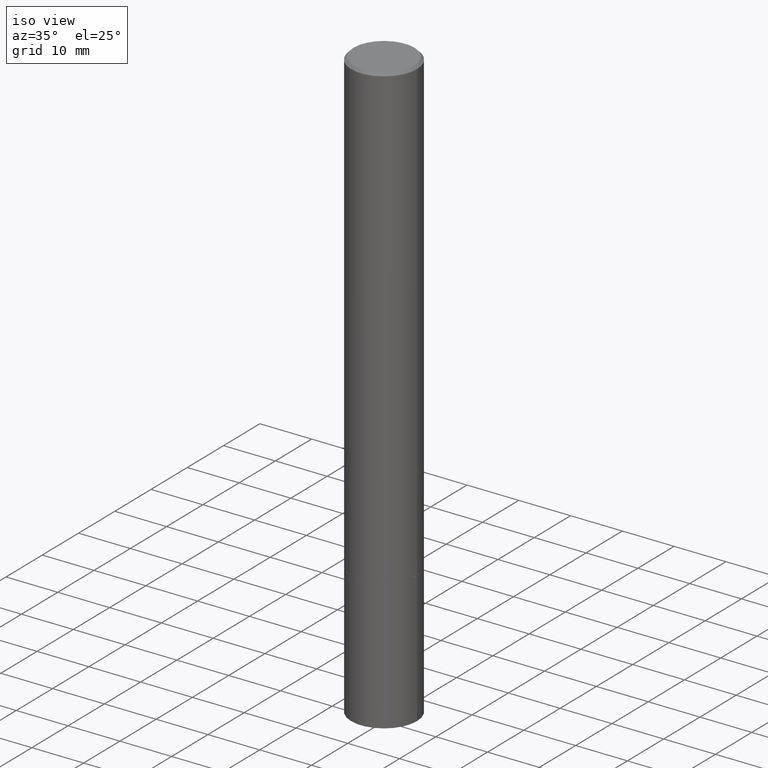
[diagram: clean part render]
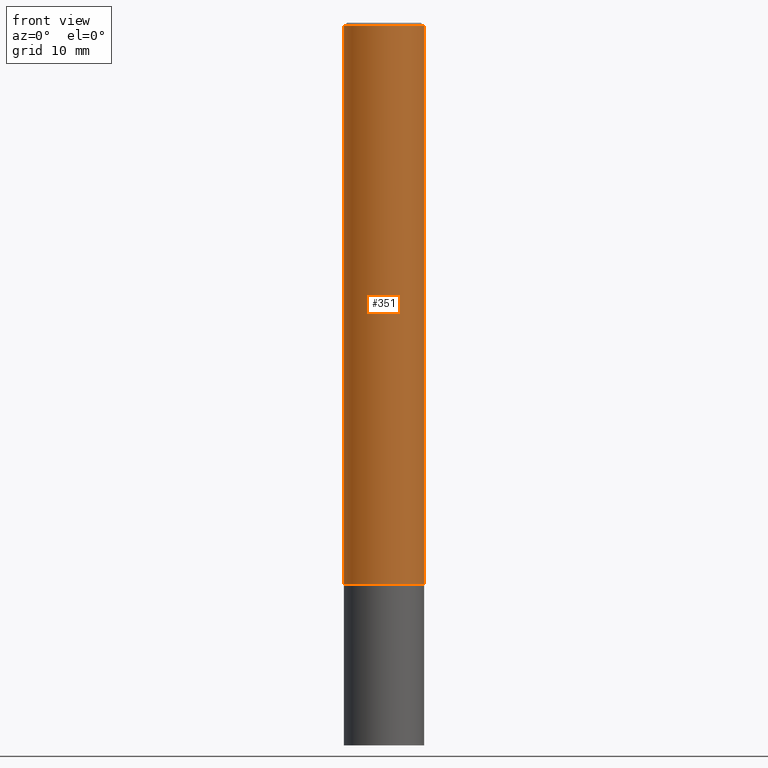
[diagram: tour spotlight — one face highlighted and labeled with its STEP entity id]
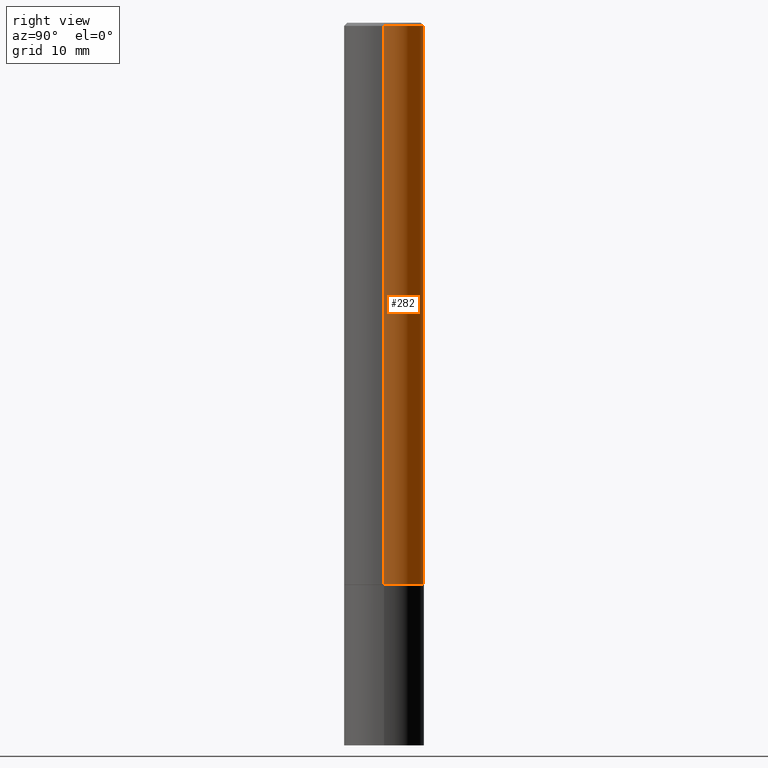
[diagram: tour spotlight — one face highlighted and labeled with its STEP entity id]
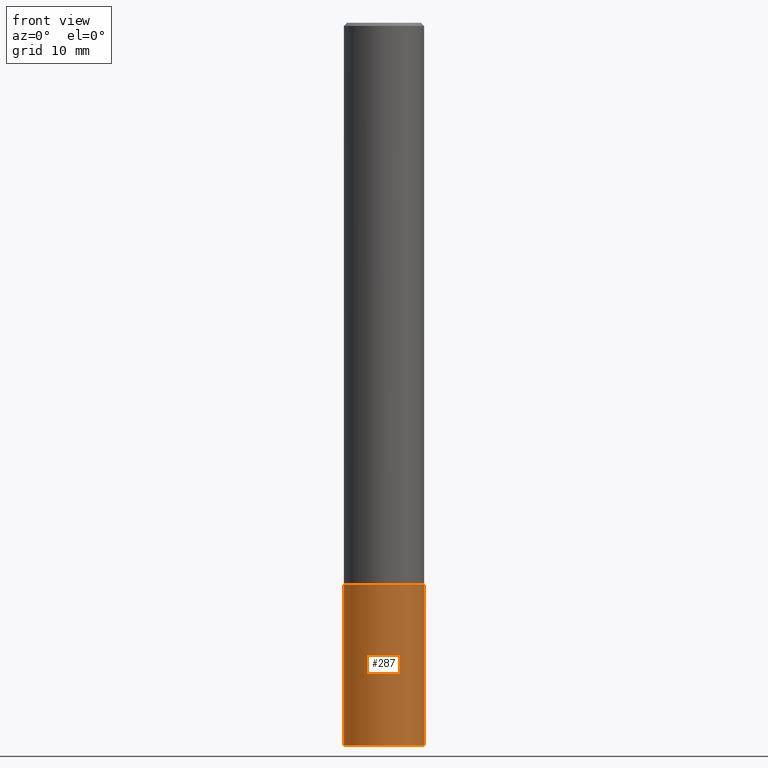
[diagram: tour spotlight — one face highlighted and labeled with its STEP entity id]
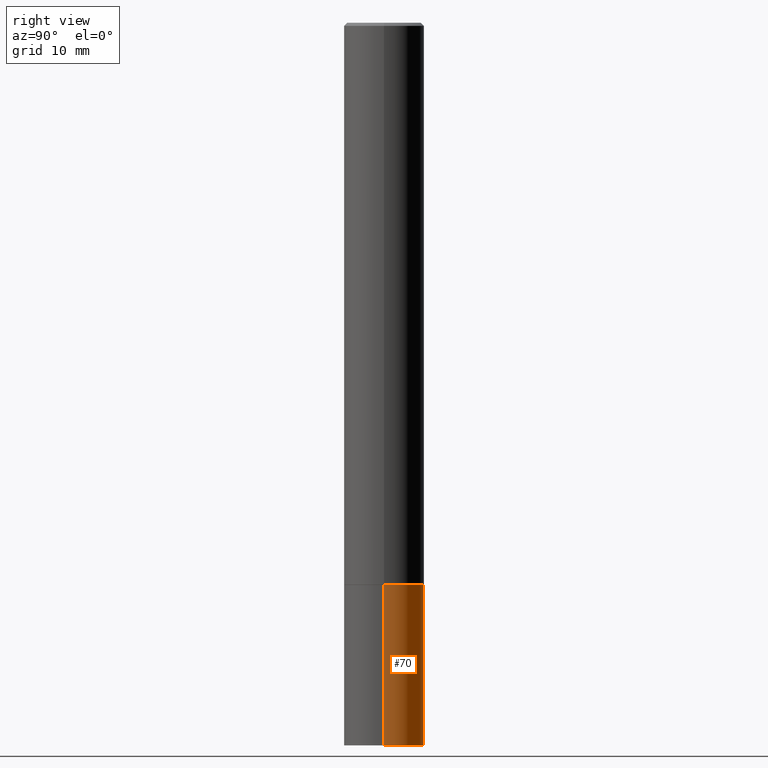
[diagram: tour spotlight — one face highlighted and labeled with its STEP entity id]
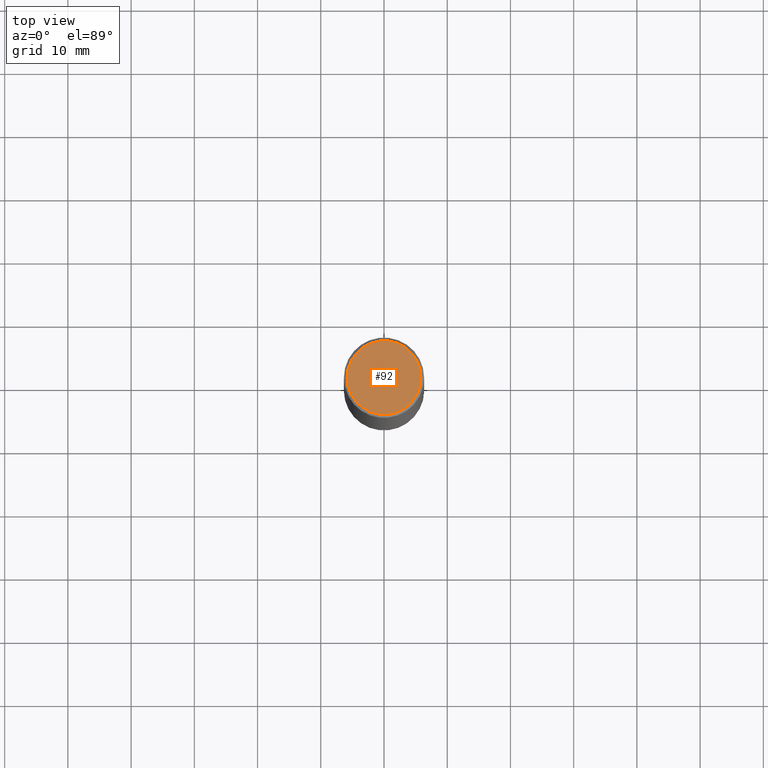
[diagram: tour spotlight — one face highlighted and labeled with its STEP entity id]
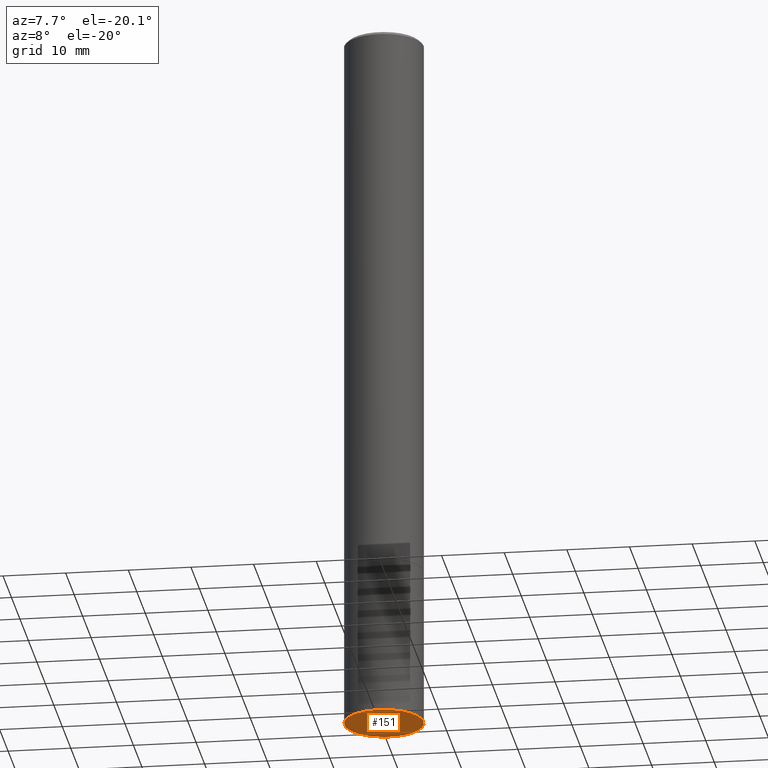
[diagram: tour spotlight — one face highlighted and labeled with its STEP entity id]
A machine part: a face-by-face anatomy tour. The part has 12 B-rep faces; the first image is the clean iso view, then the 6 largest visible faces are spotlighted one at a time (largest first), each with its STEP entity span.

Face 1 — front view, entity #351. In plain terms, the highlighted cylindrical surface (partial cylindrical patch) has radius 6.35 mm, axis along (-0, 0, 1).
Definition (entity closure, byte-faithful):
#4 = CARTESIAN_POINT ( 'NONE',  ( -0.2500000000000000555, -4.366904576294259619E-15, -3.499000000000000554 ) ) ;
#9 = DIRECTION ( 'NONE',  ( 1.000000000000000000, -6.982962677686270655E-15, 0.000000000000000000 ) ) ;
#28 = EDGE_CURVE ( 'NONE', #271, #192, #352, .T. ) ;
#46 = CIRCLE ( 'NONE', #354, 0.2499999999999995837 ) ;
#53 = ORIENTED_EDGE ( 'NONE', *, *, #158, .F. ) ;
#62 = CARTESIAN_POINT ( 'NONE',  ( 0.2499999999999998057, -1.745740669421565297E-15, 1.219044193948982967E-29 ) ) ;
#73 = DIRECTION ( 'NONE',  ( -2.445468806185136877E-29, 3.491481338843145188E-15, 1.000000000000000000 ) ) ;
#78 = DIRECTION ( 'NONE',  ( -2.445468806185136877E-29, 3.491481338843145188E-15, 1.000000000000000000 ) ) ;
#95 = CARTESIAN_POINT ( 'NONE',  ( 4.890937612370290675E-31, -6.982962677686316261E-17, -0.02000000000000007327 ) ) ;
#99 = LINE ( 'NONE', #62, #156 ) ;
#113 = CARTESIAN_POINT ( 'NONE',  ( -0.2499999999999998057, 1.776356839400249084E-15, -1.229733772563725465E-29 ) ) ;
#118 = AXIS2_PLACEMENT_3D ( 'NONE', #207, #147, #9 ) ;
#130 = AXIS2_PLACEMENT_3D ( 'NONE', #203, #316, #257 ) ;
#133 = EDGE_LOOP ( 'NONE', ( #53, #190, #242, #304 ) ) ;
#143 = VECTOR ( 'NONE', #78, 39.37007874015748143 ) ;
#145 = CYLINDRICAL_SURFACE ( 'NONE', #130, 0.2499999999999998057 ) ;
#147 = DIRECTION ( 'NONE',  ( -2.445468806185136597E-29, 3.491481338843145583E-15, 1.000000000000000000 ) ) ;
#152 = VERTEX_POINT ( 'NONE', #189 ) ;
#156 = VECTOR ( 'NONE', #73, 39.37007874015748143 ) ;
#158 = EDGE_CURVE ( 'NONE', #271, #165, #331, .T. ) ;
#165 = VERTEX_POINT ( 'NONE', #187 ) ;
#187 = CARTESIAN_POINT ( 'NONE',  ( -0.2499999999999995837, 1.675911042644700618E-15, -0.02000000000000007327 ) ) ;
#189 = CARTESIAN_POINT ( 'NONE',  ( 0.2499999999999995837, -1.784954126219743033E-15, -0.02000000000000007327 ) ) ;
#190 = ORIENTED_EDGE ( 'NONE', *, *, #28, .T. ) ;
#192 = VERTEX_POINT ( 'NONE', #301 ) ;
#194 = DIRECTION ( 'NONE',  ( -2.445468806185136597E-29, 3.491481338843145583E-15, 1.000000000000000000 ) ) ;
#197 = DIRECTION ( 'NONE',  ( 1.000000000000000000, -6.982962677686266711E-15, 0.000000000000000000 ) ) ;
#203 = CARTESIAN_POINT ( 'NONE',  ( 0.000000000000000000, 0.000000000000000000, 0.000000000000000000 ) ) ;
#207 = CARTESIAN_POINT ( 'NONE',  ( 8.556695352841794728E-29, -1.221669320461216791E-14, -3.499000000000000554 ) ) ;
#218 = FACE_OUTER_BOUND ( 'NONE', #133, .T. ) ;
#242 = ORIENTED_EDGE ( 'NONE', *, *, #256, .T. ) ;
#256 = EDGE_CURVE ( 'NONE', #192, #152, #99, .T. ) ;
#257 = DIRECTION ( 'NONE',  ( 1.000000000000000000, -6.982962677686266711E-15, 4.876176775795935793E-29 ) ) ;
#271 = VERTEX_POINT ( 'NONE', #4 ) ;
#301 = CARTESIAN_POINT ( 'NONE',  ( 0.2500000000000000000, -1.396243387403373617E-14, -3.499000000000000554 ) ) ;
#304 = ORIENTED_EDGE ( 'NONE', *, *, #317, .F. ) ;
#316 = DIRECTION ( 'NONE',  ( -2.445468806185136597E-29, 3.491481338843145583E-15, 1.000000000000000000 ) ) ;
#317 = EDGE_CURVE ( 'NONE', #165, #152, #46, .T. ) ;
#331 = LINE ( 'NONE', #113, #143 ) ;
#351 = ADVANCED_FACE ( 'NONE', ( #218 ), #145, .T. ) ;
#352 = CIRCLE ( 'NONE', #118, 0.2500000000000000000 ) ;
#354 = AXIS2_PLACEMENT_3D ( 'NONE', #95, #194, #197 ) ;

Face 2 — right view, entity #282. In plain terms, the highlighted cylindrical surface (partial cylindrical patch) has radius 6.35 mm, axis along (-0, 0, 1).
Definition (entity closure, byte-faithful):
#4 = CARTESIAN_POINT ( 'NONE',  ( -0.2500000000000000555, -4.366904576294259619E-15, -3.499000000000000554 ) ) ;
#5 = EDGE_LOOP ( 'NONE', ( #111, #302, #224, #300 ) ) ;
#7 = CYLINDRICAL_SURFACE ( 'NONE', #318, 0.2499999999999998057 ) ;
#8 = FACE_OUTER_BOUND ( 'NONE', #5, .T. ) ;
#27 = AXIS2_PLACEMENT_3D ( 'NONE', #108, #329, #110 ) ;
#55 = CARTESIAN_POINT ( 'NONE',  ( 8.556695352841794728E-29, -1.221669320461216791E-14, -3.499000000000000554 ) ) ;
#58 = DIRECTION ( 'NONE',  ( 1.000000000000000000, -6.982962677686270655E-15, 0.000000000000000000 ) ) ;
#62 = CARTESIAN_POINT ( 'NONE',  ( 0.2499999999999998057, -1.745740669421565297E-15, 1.219044193948982967E-29 ) ) ;
#73 = DIRECTION ( 'NONE',  ( -2.445468806185136877E-29, 3.491481338843145188E-15, 1.000000000000000000 ) ) ;
#78 = DIRECTION ( 'NONE',  ( -2.445468806185136877E-29, 3.491481338843145188E-15, 1.000000000000000000 ) ) ;
#99 = LINE ( 'NONE', #62, #156 ) ;
#108 = CARTESIAN_POINT ( 'NONE',  ( 4.890937612370290675E-31, -6.982962677686316261E-17, -0.02000000000000007327 ) ) ;
#110 = DIRECTION ( 'NONE',  ( 1.000000000000000000, -6.982962677686266711E-15, 0.000000000000000000 ) ) ;
#111 = ORIENTED_EDGE ( 'NONE', *, *, #344, .T. ) ;
#113 = CARTESIAN_POINT ( 'NONE',  ( -0.2499999999999998057, 1.776356839400249084E-15, -1.229733772563725465E-29 ) ) ;
#121 = DIRECTION ( 'NONE',  ( -2.445468806185136597E-29, 3.491481338843145583E-15, 1.000000000000000000 ) ) ;
#122 = CARTESIAN_POINT ( 'NONE',  ( 0.000000000000000000, 0.000000000000000000, 0.000000000000000000 ) ) ;
#143 = VECTOR ( 'NONE', #78, 39.37007874015748143 ) ;
#152 = VERTEX_POINT ( 'NONE', #189 ) ;
#156 = VECTOR ( 'NONE', #73, 39.37007874015748143 ) ;
#158 = EDGE_CURVE ( 'NONE', #271, #165, #331, .T. ) ;
#165 = VERTEX_POINT ( 'NONE', #187 ) ;
#187 = CARTESIAN_POINT ( 'NONE',  ( -0.2499999999999995837, 1.675911042644700618E-15, -0.02000000000000007327 ) ) ;
#189 = CARTESIAN_POINT ( 'NONE',  ( 0.2499999999999995837, -1.784954126219743033E-15, -0.02000000000000007327 ) ) ;
#192 = VERTEX_POINT ( 'NONE', #301 ) ;
#221 = AXIS2_PLACEMENT_3D ( 'NONE', #55, #228, #58 ) ;
#224 = ORIENTED_EDGE ( 'NONE', *, *, #226, .F. ) ;
#226 = EDGE_CURVE ( 'NONE', #152, #165, #308, .T. ) ;
#227 = DIRECTION ( 'NONE',  ( 1.000000000000000000, -6.982962677686266711E-15, 4.876176775795935793E-29 ) ) ;
#228 = DIRECTION ( 'NONE',  ( -2.445468806185136597E-29, 3.491481338843145583E-15, 1.000000000000000000 ) ) ;
#247 = CIRCLE ( 'NONE', #221, 0.2500000000000000000 ) ;
#256 = EDGE_CURVE ( 'NONE', #192, #152, #99, .T. ) ;
#271 = VERTEX_POINT ( 'NONE', #4 ) ;
#282 = ADVANCED_FACE ( 'NONE', ( #8 ), #7, .T. ) ;
#300 = ORIENTED_EDGE ( 'NONE', *, *, #256, .F. ) ;
#301 = CARTESIAN_POINT ( 'NONE',  ( 0.2500000000000000000, -1.396243387403373617E-14, -3.499000000000000554 ) ) ;
#302 = ORIENTED_EDGE ( 'NONE', *, *, #158, .T. ) ;
#308 = CIRCLE ( 'NONE', #27, 0.2499999999999995837 ) ;
#318 = AXIS2_PLACEMENT_3D ( 'NONE', #122, #121, #227 ) ;
#329 = DIRECTION ( 'NONE',  ( -2.445468806185136597E-29, 3.491481338843145583E-15, 1.000000000000000000 ) ) ;
#331 = LINE ( 'NONE', #113, #143 ) ;
#344 = EDGE_CURVE ( 'NONE', #192, #271, #247, .T. ) ;

Face 3 — front view, entity #287. In plain terms, the highlighted cylindrical surface (partial cylindrical patch) has radius 6.35 mm, axis along (-0, 0, 1).
Definition (entity closure, byte-faithful):
#1 = DIRECTION ( 'NONE',  ( 1.000000000000000000, -6.982962677686262766E-15, 0.000000000000000000 ) ) ;
#2 = VECTOR ( 'NONE', #349, 39.37007874015748143 ) ;
#13 = EDGE_CURVE ( 'NONE', #35, #161, #264, .T. ) ;
#35 = VERTEX_POINT ( 'NONE', #123 ) ;
#51 = CARTESIAN_POINT ( 'NONE',  ( 0.2500000000000000000, -1.745740669421566678E-15, 1.219044193948983948E-29 ) ) ;
#56 = EDGE_LOOP ( 'NONE', ( #159, #86, #251, #232 ) ) ;
#57 = VERTEX_POINT ( 'NONE', #347 ) ;
#65 = DIRECTION ( 'NONE',  ( -2.445468806185136597E-29, 3.491481338843145583E-15, 1.000000000000000000 ) ) ;
#71 = CARTESIAN_POINT ( 'NONE',  ( -0.2500000000000000000, 1.776356839400250465E-15, -1.229733772563726445E-29 ) ) ;
#86 = ORIENTED_EDGE ( 'NONE', *, *, #236, .T. ) ;
#93 = FACE_OUTER_BOUND ( 'NONE', #56, .T. ) ;
#112 = CARTESIAN_POINT ( 'NONE',  ( 1.100460962783311469E-28, -1.571166602479415690E-14, -4.500000000000000000 ) ) ;
#116 = VECTOR ( 'NONE', #213, 39.37007874015748143 ) ;
#123 = CARTESIAN_POINT ( 'NONE',  ( -0.2500000000000000000, -1.218956851597233187E-14, -4.500000000000000000 ) ) ;
#132 = CARTESIAN_POINT ( 'NONE',  ( 0.2500000000000000000, -1.745740669421572357E-14, -4.500000000000000000 ) ) ;
#142 = DIRECTION ( 'NONE',  ( -2.445468806185136597E-29, 3.491481338843145583E-15, 1.000000000000000000 ) ) ;
#146 = CIRCLE ( 'NONE', #325, 0.2500000000000000000 ) ;
#159 = ORIENTED_EDGE ( 'NONE', *, *, #13, .F. ) ;
#161 = VERTEX_POINT ( 'NONE', #162 ) ;
#162 = CARTESIAN_POINT ( 'NONE',  ( -0.2500000000000000000, -1.218956851597233187E-14, -3.500000000000000444 ) ) ;
#169 = VERTEX_POINT ( 'NONE', #132 ) ;
#172 = EDGE_CURVE ( 'NONE', #169, #57, #334, .T. ) ;
#174 = CARTESIAN_POINT ( 'NONE',  ( 8.559140821647978089E-29, -1.222018468595101092E-14, -3.500000000000000444 ) ) ;
#176 = CARTESIAN_POINT ( 'NONE',  ( 0.000000000000000000, 0.000000000000000000, 0.000000000000000000 ) ) ;
#184 = DIRECTION ( 'NONE',  ( -2.445468806185136597E-29, 3.491481338843145583E-15, 1.000000000000000000 ) ) ;
#202 = DIRECTION ( 'NONE',  ( 1.000000000000000000, -6.982962677686266711E-15, 4.876176775795935793E-29 ) ) ;
#205 = CYLINDRICAL_SURFACE ( 'NONE', #258, 0.2500000000000000000 ) ;
#213 = DIRECTION ( 'NONE',  ( -2.445468806185136877E-29, 3.491481338843145188E-15, 1.000000000000000000 ) ) ;
#232 = ORIENTED_EDGE ( 'NONE', *, *, #340, .F. ) ;
#236 = EDGE_CURVE ( 'NONE', #35, #169, #277, .T. ) ;
#251 = ORIENTED_EDGE ( 'NONE', *, *, #172, .T. ) ;
#258 = AXIS2_PLACEMENT_3D ( 'NONE', #176, #65, #202 ) ;
#264 = LINE ( 'NONE', #71, #2 ) ;
#277 = CIRCLE ( 'NONE', #298, 0.2500000000000000000 ) ;
#287 = ADVANCED_FACE ( 'NONE', ( #93 ), #205, .T. ) ;
#294 = DIRECTION ( 'NONE',  ( 1.000000000000000000, -6.982962677686270655E-15, 0.000000000000000000 ) ) ;
#298 = AXIS2_PLACEMENT_3D ( 'NONE', #112, #184, #294 ) ;
#325 = AXIS2_PLACEMENT_3D ( 'NONE', #174, #142, #1 ) ;
#334 = LINE ( 'NONE', #51, #116 ) ;
#340 = EDGE_CURVE ( 'NONE', #161, #57, #146, .T. ) ;
#347 = CARTESIAN_POINT ( 'NONE',  ( 0.2500000000000000000, -1.396592535537257602E-14, -3.500000000000000444 ) ) ;
#349 = DIRECTION ( 'NONE',  ( -2.445468806185136877E-29, 3.491481338843145188E-15, 1.000000000000000000 ) ) ;

Face 4 — right view, entity #70. In plain terms, the highlighted cylindrical surface (partial cylindrical patch) has radius 6.35 mm, axis along (-0, 0, 1).
Definition (entity closure, byte-faithful):
#2 = VECTOR ( 'NONE', #349, 39.37007874015748143 ) ;
#6 = DIRECTION ( 'NONE',  ( 1.000000000000000000, -6.982962677686262766E-15, 0.000000000000000000 ) ) ;
#13 = EDGE_CURVE ( 'NONE', #35, #161, #264, .T. ) ;
#15 = CYLINDRICAL_SURFACE ( 'NONE', #129, 0.2500000000000000000 ) ;
#21 = CARTESIAN_POINT ( 'NONE',  ( 8.559140821647978089E-29, -1.222018468595101092E-14, -3.500000000000000444 ) ) ;
#31 = DIRECTION ( 'NONE',  ( -2.445468806185136597E-29, 3.491481338843145583E-15, 1.000000000000000000 ) ) ;
#35 = VERTEX_POINT ( 'NONE', #123 ) ;
#39 = CIRCLE ( 'NONE', #285, 0.2500000000000000000 ) ;
#42 = ORIENTED_EDGE ( 'NONE', *, *, #172, .F. ) ;
#51 = CARTESIAN_POINT ( 'NONE',  ( 0.2500000000000000000, -1.745740669421566678E-15, 1.219044193948983948E-29 ) ) ;
#57 = VERTEX_POINT ( 'NONE', #347 ) ;
#69 = DIRECTION ( 'NONE',  ( 1.000000000000000000, -6.982962677686270655E-15, 0.000000000000000000 ) ) ;
#70 = ADVANCED_FACE ( 'NONE', ( #183 ), #15, .T. ) ;
#71 = CARTESIAN_POINT ( 'NONE',  ( -0.2500000000000000000, 1.776356839400250465E-15, -1.229733772563726445E-29 ) ) ;
#76 = ORIENTED_EDGE ( 'NONE', *, *, #315, .F. ) ;
#87 = AXIS2_PLACEMENT_3D ( 'NONE', #21, #31, #6 ) ;
#91 = ORIENTED_EDGE ( 'NONE', *, *, #307, .T. ) ;
#109 = EDGE_LOOP ( 'NONE', ( #91, #275, #76, #42 ) ) ;
#116 = VECTOR ( 'NONE', #213, 39.37007874015748143 ) ;
#123 = CARTESIAN_POINT ( 'NONE',  ( -0.2500000000000000000, -1.218956851597233187E-14, -4.500000000000000000 ) ) ;
#129 = AXIS2_PLACEMENT_3D ( 'NONE', #131, #137, #309 ) ;
#131 = CARTESIAN_POINT ( 'NONE',  ( 0.000000000000000000, 0.000000000000000000, 0.000000000000000000 ) ) ;
#132 = CARTESIAN_POINT ( 'NONE',  ( 0.2500000000000000000, -1.745740669421572357E-14, -4.500000000000000000 ) ) ;
#137 = DIRECTION ( 'NONE',  ( -2.445468806185136597E-29, 3.491481338843145583E-15, 1.000000000000000000 ) ) ;
#161 = VERTEX_POINT ( 'NONE', #162 ) ;
#162 = CARTESIAN_POINT ( 'NONE',  ( -0.2500000000000000000, -1.218956851597233187E-14, -3.500000000000000444 ) ) ;
#169 = VERTEX_POINT ( 'NONE', #132 ) ;
#172 = EDGE_CURVE ( 'NONE', #169, #57, #334, .T. ) ;
#183 = FACE_OUTER_BOUND ( 'NONE', #109, .T. ) ;
#213 = DIRECTION ( 'NONE',  ( -2.445468806185136877E-29, 3.491481338843145188E-15, 1.000000000000000000 ) ) ;
#229 = CARTESIAN_POINT ( 'NONE',  ( 1.100460962783311469E-28, -1.571166602479415690E-14, -4.500000000000000000 ) ) ;
#264 = LINE ( 'NONE', #71, #2 ) ;
#275 = ORIENTED_EDGE ( 'NONE', *, *, #13, .T. ) ;
#285 = AXIS2_PLACEMENT_3D ( 'NONE', #229, #345, #69 ) ;
#307 = EDGE_CURVE ( 'NONE', #169, #35, #39, .T. ) ;
#309 = DIRECTION ( 'NONE',  ( 1.000000000000000000, -6.982962677686266711E-15, 4.876176775795935793E-29 ) ) ;
#315 = EDGE_CURVE ( 'NONE', #57, #161, #338, .T. ) ;
#334 = LINE ( 'NONE', #51, #116 ) ;
#338 = CIRCLE ( 'NONE', #87, 0.2500000000000000000 ) ;
#345 = DIRECTION ( 'NONE',  ( -2.445468806185136597E-29, 3.491481338843145583E-15, 1.000000000000000000 ) ) ;
#347 = CARTESIAN_POINT ( 'NONE',  ( 0.2500000000000000000, -1.396592535537257602E-14, -3.500000000000000444 ) ) ;
#349 = DIRECTION ( 'NONE',  ( -2.445468806185136877E-29, 3.491481338843145188E-15, 1.000000000000000000 ) ) ;

Face 5 — top view, entity #92. In plain terms, the highlighted planar face has unit normal (0, -0, -1).
Definition (entity closure, byte-faithful):
#22 = DIRECTION ( 'NONE',  ( 2.438088387897960049E-29, -3.491481338843145188E-15, -1.000000000000000000 ) ) ;
#23 = ORIENTED_EDGE ( 'NONE', *, *, #193, .T. ) ;
#29 = CARTESIAN_POINT ( 'NONE',  ( -0.2299999999999995381, 1.640996229256269364E-15, 4.268512490089056766E-18 ) ) ;
#38 = AXIS2_PLACEMENT_3D ( 'NONE', #105, #22, #270 ) ;
#44 = DIRECTION ( 'NONE',  ( 1.000000000000000000, -6.982962677686266711E-15, 4.876225828469318410E-29 ) ) ;
#48 = CARTESIAN_POINT ( 'NONE',  ( -1.043851414335219820E-46, 1.490343170380447200E-32, 4.268512490100411279E-18 ) ) ;
#59 = AXIS2_PLACEMENT_3D ( 'NONE', #48, #297, #188 ) ;
#83 = VERTEX_POINT ( 'NONE', #154 ) ;
#84 = FACE_OUTER_BOUND ( 'NONE', #178, .T. ) ;
#92 = ADVANCED_FACE ( 'NONE', ( #84 ), #160, .F. ) ;
#102 = ORIENTED_EDGE ( 'NONE', *, *, #134, .T. ) ;
#105 = CARTESIAN_POINT ( 'NONE',  ( 1.606081415867837912E-15, 0.2299999999999995381, -8.009064516888716022E-16 ) ) ;
#115 = VERTEX_POINT ( 'NONE', #29 ) ;
#134 = EDGE_CURVE ( 'NONE', #83, #115, #292, .T. ) ;
#138 = AXIS2_PLACEMENT_3D ( 'NONE', #214, #239, #44 ) ;
#139 = CIRCLE ( 'NONE', #59, 0.2299999999999995381 ) ;
#154 = CARTESIAN_POINT ( 'NONE',  ( 0.2299999999999995381, -1.681434332853596053E-15, 4.268512490111905999E-18 ) ) ;
#160 = PLANE ( 'NONE',  #38 ) ;
#178 = EDGE_LOOP ( 'NONE', ( #23, #102 ) ) ;
#188 = DIRECTION ( 'NONE',  ( 1.000000000000000000, -6.982962677686266711E-15, 4.876225828469318410E-29 ) ) ;
#193 = EDGE_CURVE ( 'NONE', #115, #83, #139, .T. ) ;
#214 = CARTESIAN_POINT ( 'NONE',  ( -1.043851414335219820E-46, 1.490343170380447200E-32, 4.268512490100411279E-18 ) ) ;
#239 = DIRECTION ( 'NONE',  ( -2.445468806185136597E-29, 3.491481338843145583E-15, 1.000000000000000000 ) ) ;
#270 = DIRECTION ( 'NONE',  ( -1.000000000000000000, 6.982962677686265922E-15, -4.876176775795935793E-29 ) ) ;
#292 = CIRCLE ( 'NONE', #138, 0.2299999999999995381 ) ;
#297 = DIRECTION ( 'NONE',  ( -2.445468806185136597E-29, 3.491481338843145583E-15, 1.000000000000000000 ) ) ;

Face 6 — auxiliary view, entity #151. In plain terms, the highlighted planar face has unit normal (0, -0, -1).
Definition (entity closure, byte-faithful):
#17 = CARTESIAN_POINT ( 'NONE',  ( 1.745740669421676527E-15, 0.2499999999999842903, -4.500000000000000888 ) ) ;
#35 = VERTEX_POINT ( 'NONE', #123 ) ;
#39 = CIRCLE ( 'NONE', #285, 0.2500000000000000000 ) ;
#69 = DIRECTION ( 'NONE',  ( 1.000000000000000000, -6.982962677686270655E-15, 0.000000000000000000 ) ) ;
#112 = CARTESIAN_POINT ( 'NONE',  ( 1.100460962783311469E-28, -1.571166602479415690E-14, -4.500000000000000000 ) ) ;
#123 = CARTESIAN_POINT ( 'NONE',  ( -0.2500000000000000000, -1.218956851597233187E-14, -4.500000000000000000 ) ) ;
#132 = CARTESIAN_POINT ( 'NONE',  ( 0.2500000000000000000, -1.745740669421572357E-14, -4.500000000000000000 ) ) ;
#151 = ADVANCED_FACE ( 'NONE', ( #248 ), #362, .T. ) ;
#169 = VERTEX_POINT ( 'NONE', #132 ) ;
#180 = AXIS2_PLACEMENT_3D ( 'NONE', #17, #355, #268 ) ;
#184 = DIRECTION ( 'NONE',  ( -2.445468806185136597E-29, 3.491481338843145583E-15, 1.000000000000000000 ) ) ;
#217 = EDGE_LOOP ( 'NONE', ( #330, #253 ) ) ;
#229 = CARTESIAN_POINT ( 'NONE',  ( 1.100460962783311469E-28, -1.571166602479415690E-14, -4.500000000000000000 ) ) ;
#236 = EDGE_CURVE ( 'NONE', #35, #169, #277, .T. ) ;
#248 = FACE_OUTER_BOUND ( 'NONE', #217, .T. ) ;
#253 = ORIENTED_EDGE ( 'NONE', *, *, #236, .F. ) ;
#268 = DIRECTION ( 'NONE',  ( -1.000000000000000000, 6.982962677686265922E-15, -4.876176775795935793E-29 ) ) ;
#277 = CIRCLE ( 'NONE', #298, 0.2500000000000000000 ) ;
#285 = AXIS2_PLACEMENT_3D ( 'NONE', #229, #345, #69 ) ;
#294 = DIRECTION ( 'NONE',  ( 1.000000000000000000, -6.982962677686270655E-15, 0.000000000000000000 ) ) ;
#298 = AXIS2_PLACEMENT_3D ( 'NONE', #112, #184, #294 ) ;
#307 = EDGE_CURVE ( 'NONE', #169, #35, #39, .T. ) ;
#330 = ORIENTED_EDGE ( 'NONE', *, *, #307, .F. ) ;
#345 = DIRECTION ( 'NONE',  ( -2.445468806185136597E-29, 3.491481338843145583E-15, 1.000000000000000000 ) ) ;
#355 = DIRECTION ( 'NONE',  ( 2.438088387897960049E-29, -3.491481338843145188E-15, -1.000000000000000000 ) ) ;
#362 = PLANE ( 'NONE',  #180 ) ;